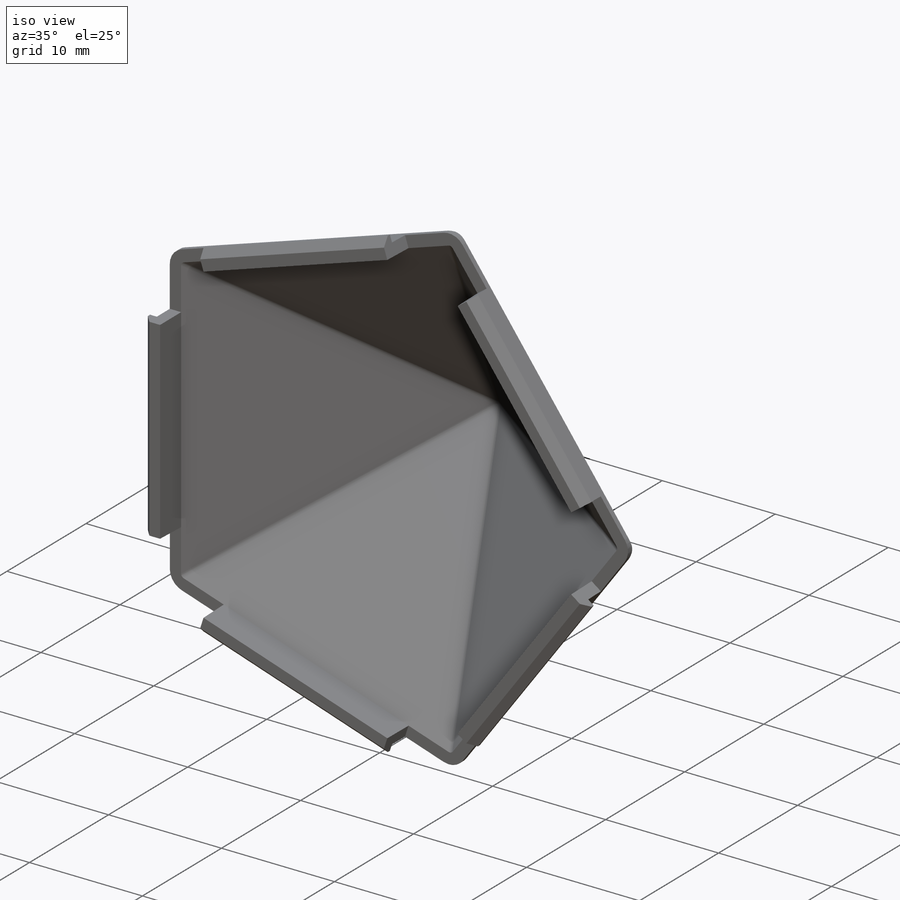
[diagram: iso view]
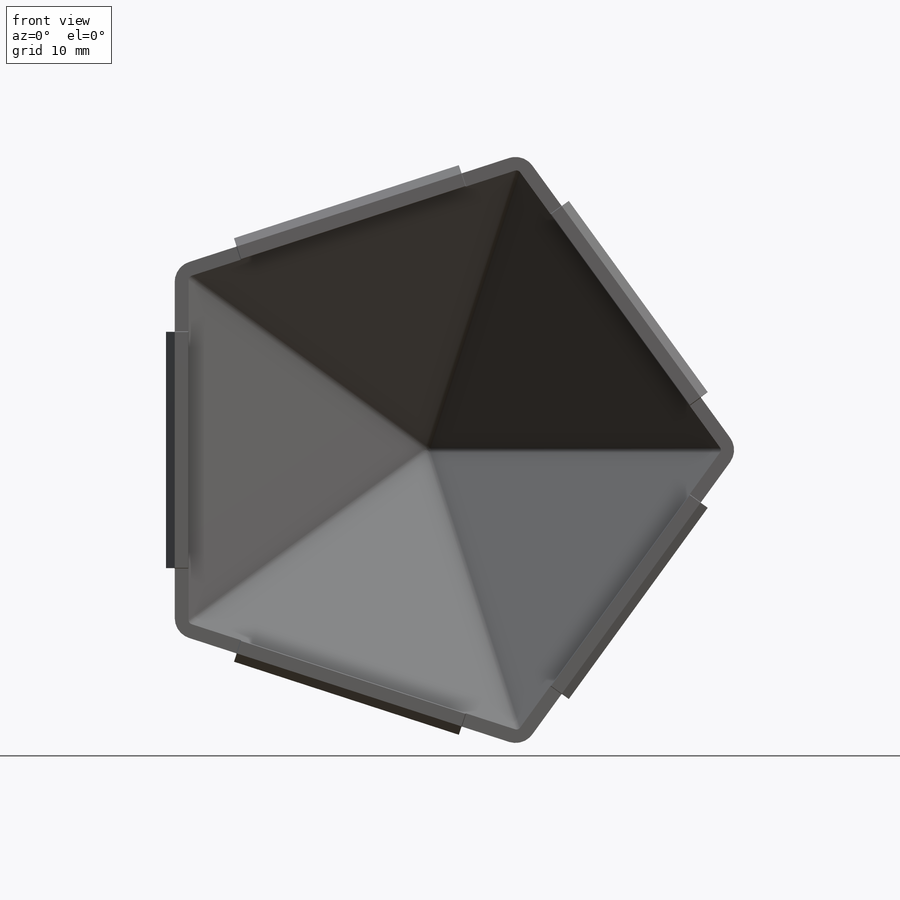
[diagram: front view]
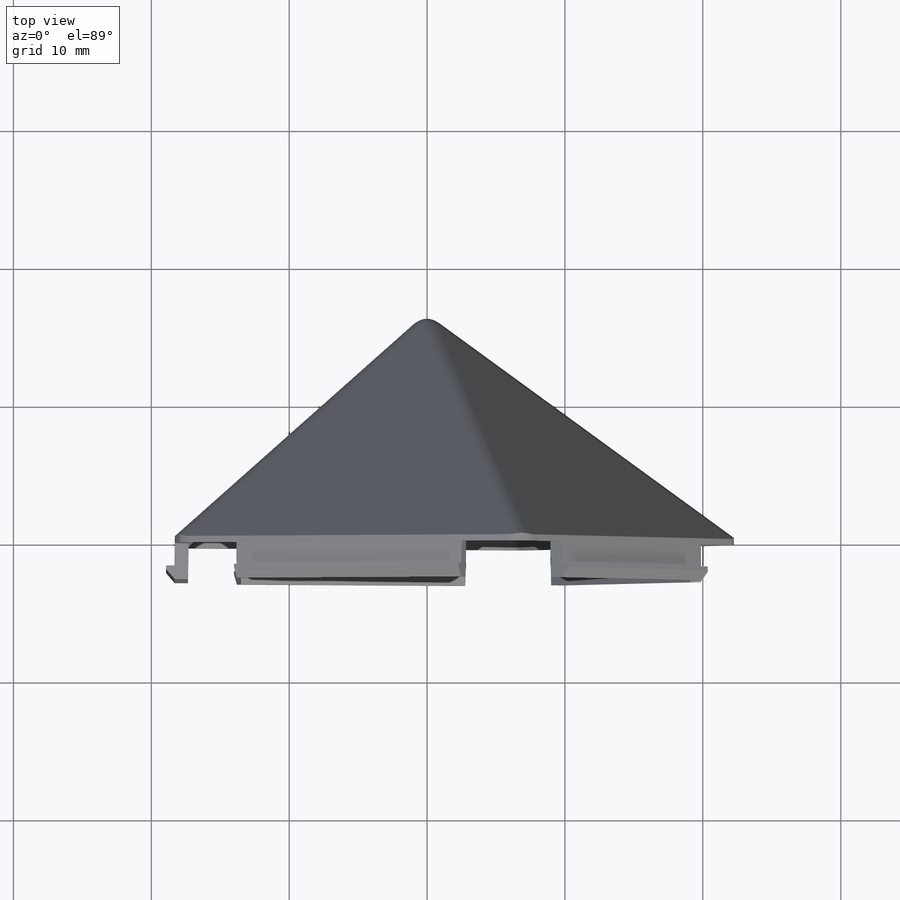
[diagram: top view]
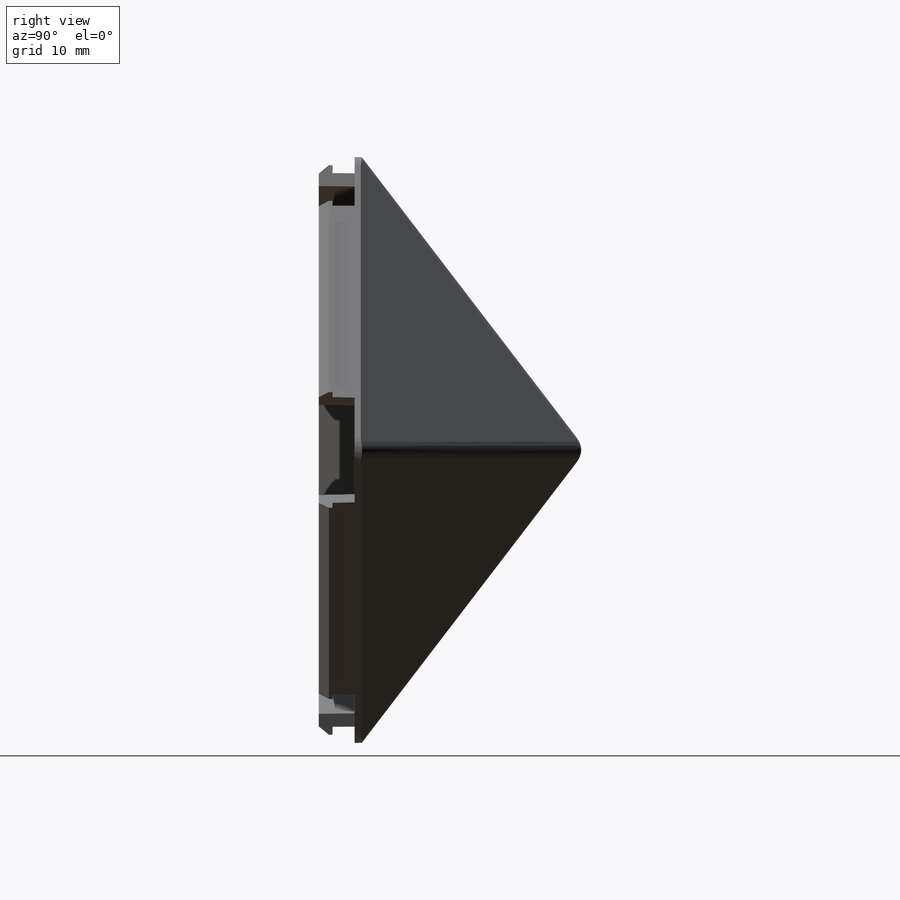
[diagram: right view]
SOLIDWORKS PART (.sldprt)
format: sldprt  version: not decoded by parser v0  size: 372,736 bytes
history: native  units: mm
features: sketch x4, pattern_circular x2, extrude x2, fillet x2, shell x2, material x1 + 1 further entry (+15 scaffold rows collapsed; 3 parser-record rows omitted)
feature tree (32):
  scaffold x15  (default folders/planes/origin — collapsed)
  material  "Material <not specified>"
  sketch  "Sketch1"  dims[D1=16.52mm D2=1.5mm D3=18.345mm]
  parser-record x3  (decoder bookkeeping rows leaked as tree rows — omitted from the tree; the rows remain in map.json)
  "Adjustable Height"
  sketch  "Sketch3"
  pattern_circular  "CirPattern2"  Count=5 Angle=72deg
  sketch  "Sketch6"  dims[D1=0.0mm]
  extrude  "Boss-Extrude2"  Depth=0.4mm
  fillet  "Fillet1"  Radius=1.5mm
  shell  "Nominal Thickness"  Thickness=1mm
  sketch  "Sketch8"  dims[D1=1.6mm D2=1.0mm D3=0.6mm D4=0.25mm D5=1.0mm]
  extrude  "Boss-Extrude3"  Depth=17.2mm
  shell  "Draft2"  [1 undecoded]
  pattern_circular  "CirPattern3"  Count=5 Angle=72deg
  fillet  "Fillet2"  Radius=1.5mm
decode coverage: 10 of 12 modeling features carry decoded parameters; 1 rows unclassified (native names shown)
note: 1 parameter value undecoded
note: suppression state not decoded; provenance and decode notes live in map.json
